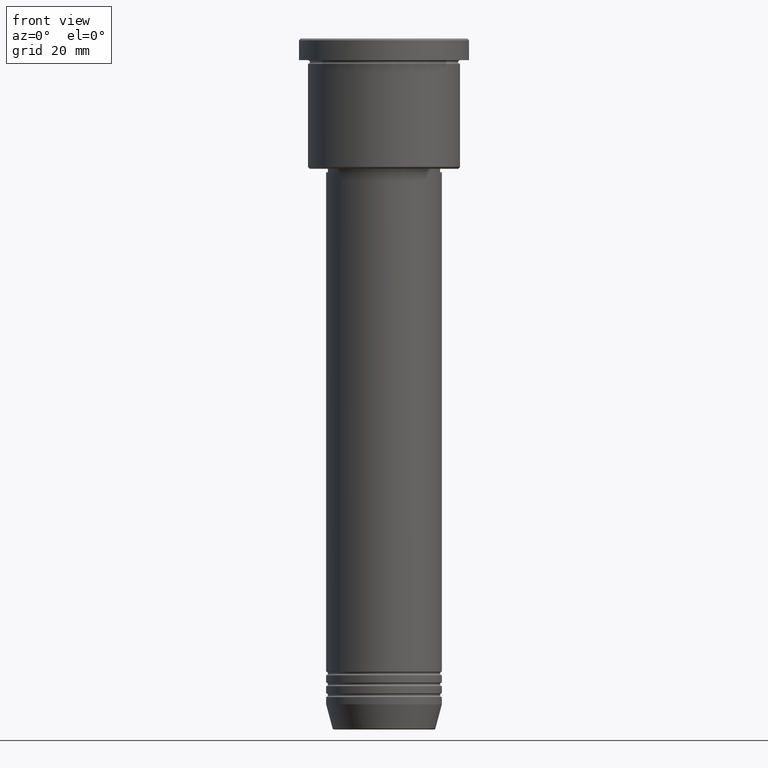
[diagram: clean part render]
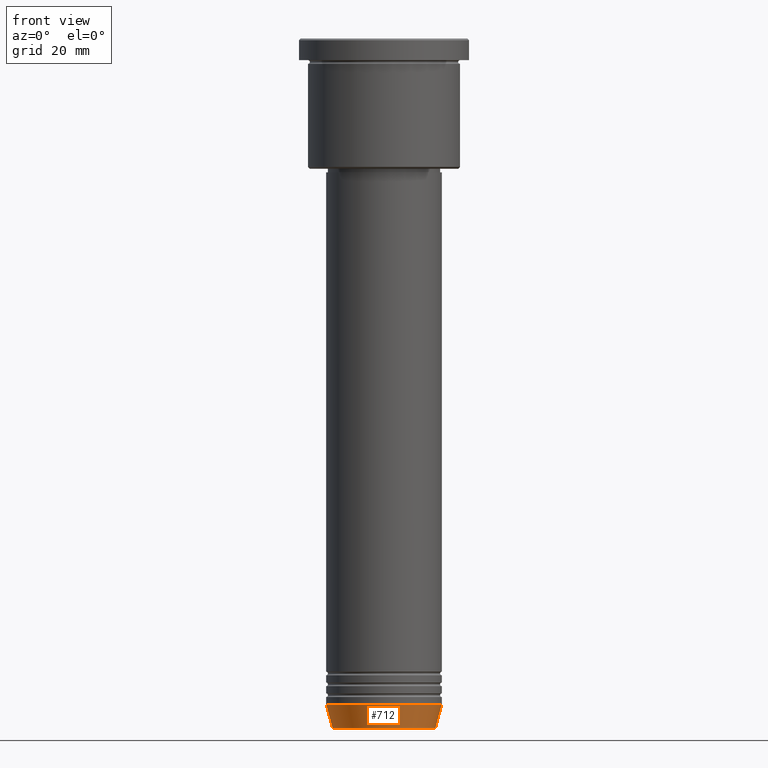
[diagram: same view with one face highlighted and labeled with its STEP entity id]
A machine part, front view. The second image highlights one B-rep face of the part: STEP entity #712.
In plain terms, the highlighted conical surface has half-angle 15 deg.
Its self-contained STEP definition (entity closure, byte-faithful):
#6 = EDGE_LOOP ( 'NONE', ( #247, #557, #781, #332 ) ) ;
#30 = DIRECTION ( 'NONE',  ( -0.000000000000000000, -0.000000000000000000, 1.000000000000000000 ) ) ;
#62 = VERTEX_POINT ( 'NONE', #206 ) ;
#77 = CARTESIAN_POINT ( 'NONE',  ( 0.000000000000000000, 0.000000000000000000, -184.0000000000000284 ) ) ;
#142 = VERTEX_POINT ( 'NONE', #293 ) ;
#162 = VECTOR ( 'NONE', #746, 1000.000000000000000 ) ;
#177 = DIRECTION ( 'NONE',  ( -0.000000000000000000, -0.000000000000000000, 1.000000000000000000 ) ) ;
#206 = CARTESIAN_POINT ( 'NONE',  ( -14.22365507213719660, 1.850665122131324126E-15, -190.6294095225512706 ) ) ;
#242 = CIRCLE ( 'NONE', #413, 14.22365507213719660 ) ;
#243 = LINE ( 'NONE', #616, #508 ) ;
#247 = ORIENTED_EDGE ( 'NONE', *, *, #615, .F. ) ;
#258 = DIRECTION ( 'NONE',  ( 1.000000000000000000, 0.000000000000000000, 0.000000000000000000 ) ) ;
#273 = DIRECTION ( 'NONE',  ( -0.000000000000000000, -0.000000000000000000, 1.000000000000000000 ) ) ;
#284 = CIRCLE ( 'NONE', #495, 16.00000000000000000 ) ;
#293 = CARTESIAN_POINT ( 'NONE',  ( -16.00000000000000000, 1.959434878635765131E-15, -184.0000000000000284 ) ) ;
#332 = ORIENTED_EDGE ( 'NONE', *, *, #821, .F. ) ;
#413 = AXIS2_PLACEMENT_3D ( 'NONE', #437, #177, #801 ) ;
#432 = EDGE_CURVE ( 'NONE', #802, #757, #918, .T. ) ;
#437 = CARTESIAN_POINT ( 'NONE',  ( 0.000000000000000000, 0.000000000000000000, -190.6294095225512706 ) ) ;
#459 = CARTESIAN_POINT ( 'NONE',  ( 0.000000000000000000, 0.000000000000000000, -184.0000000000000284 ) ) ;
#495 = AXIS2_PLACEMENT_3D ( 'NONE', #459, #30, #910 ) ;
#508 = VECTOR ( 'NONE', #966, 1000.000000000000000 ) ;
#553 = CARTESIAN_POINT ( 'NONE',  ( 14.22365507213719660, 0.000000000000000000, -190.6294095225512706 ) ) ;
#557 = ORIENTED_EDGE ( 'NONE', *, *, #1126, .T. ) ;
#615 = EDGE_CURVE ( 'NONE', #62, #142, #243, .T. ) ;
#616 = CARTESIAN_POINT ( 'NONE',  ( -16.00000000000000000, 1.959434878635765131E-15, -184.0000000000000284 ) ) ;
#712 = ADVANCED_FACE ( 'NONE', ( #1161 ), #904, .T. ) ;
#728 = CARTESIAN_POINT ( 'NONE',  ( 16.00000000000000000, 0.000000000000000000, -184.0000000000000284 ) ) ;
#746 = DIRECTION ( 'NONE',  ( 0.2588190451025213501, 0.000000000000000000, 0.9659258262890680902 ) ) ;
#757 = VERTEX_POINT ( 'NONE', #728 ) ;
#781 = ORIENTED_EDGE ( 'NONE', *, *, #432, .T. ) ;
#801 = DIRECTION ( 'NONE',  ( 1.000000000000000000, 0.000000000000000000, 0.000000000000000000 ) ) ;
#802 = VERTEX_POINT ( 'NONE', #553 ) ;
#821 = EDGE_CURVE ( 'NONE', #142, #757, #284, .T. ) ;
#904 = CONICAL_SURFACE ( 'NONE', #1054, 16.00000000000000000, 0.2617993877991500740 ) ;
#910 = DIRECTION ( 'NONE',  ( 1.000000000000000000, 0.000000000000000000, 0.000000000000000000 ) ) ;
#918 = LINE ( 'NONE', #934, #162 ) ;
#934 = CARTESIAN_POINT ( 'NONE',  ( 16.00000000000000000, 0.000000000000000000, -184.0000000000000284 ) ) ;
#966 = DIRECTION ( 'NONE',  ( -0.2588190451025213501, 3.169619151431772337E-17, 0.9659258262890680902 ) ) ;
#1054 = AXIS2_PLACEMENT_3D ( 'NONE', #77, #273, #258 ) ;
#1126 = EDGE_CURVE ( 'NONE', #62, #802, #242, .T. ) ;
#1161 = FACE_OUTER_BOUND ( 'NONE', #6, .T. ) ;